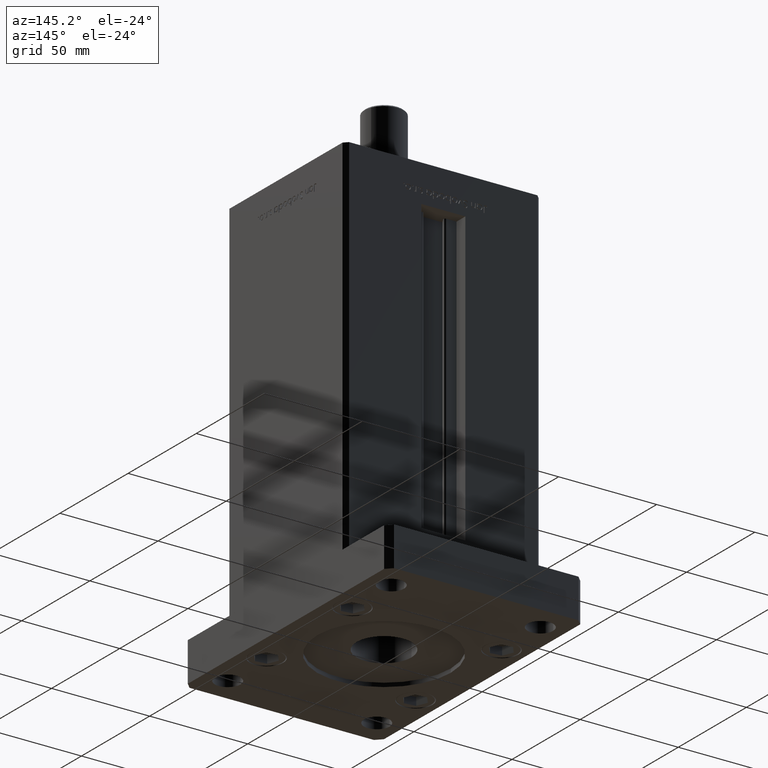
[diagram: clean part render]
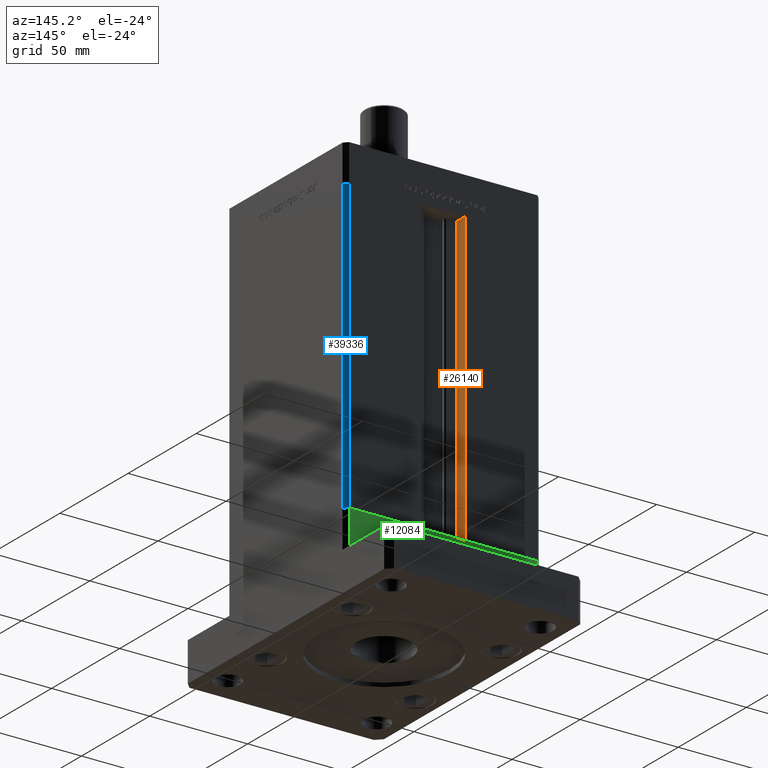
[diagram: same view with three faces highlighted in distinct colors, each labeled with its STEP entity id]
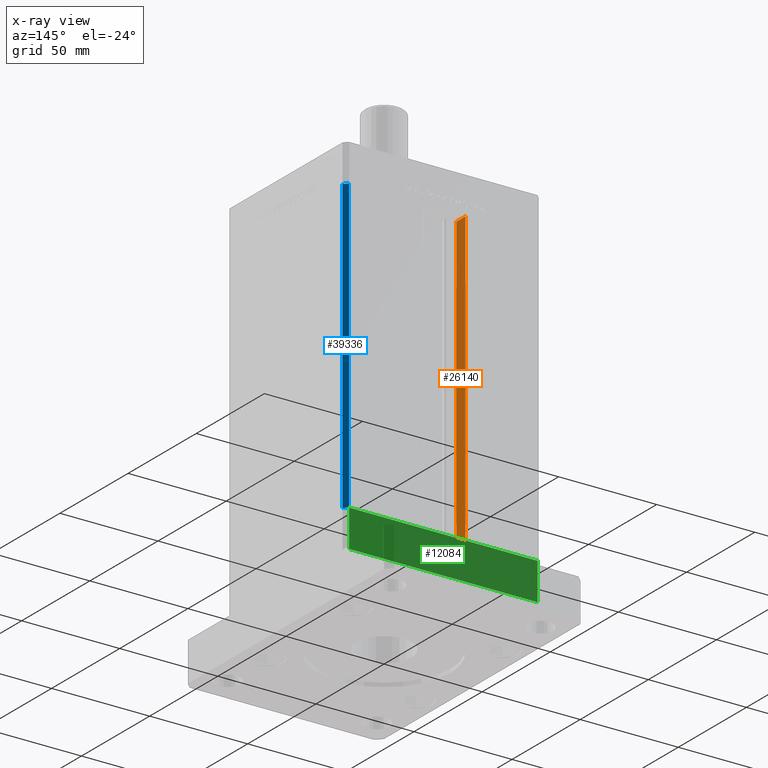
[diagram: x-ray of the same camera — body ghosted, the three highlighted faces saturated]
A machine part, auxiliary view with three faces highlighted in distinct colors.
The next image is the same camera in x-ray (body ghosted, the three faces saturated) — at least one of them is partly hidden behind the body in this view.
Their STEP definitions:

[orange] entity #26140 — the highlighted planar face has unit normal (-1, 0, 0).
#327 = VECTOR ( 'NONE', #2615, 1000.000000000000000 ) ;
#1137 = ORIENTED_EDGE ( 'NONE', *, *, #5017, .T. ) ;
#1536 = CARTESIAN_POINT ( 'NONE',  ( -11.24999999999999822, 36.99999999999999289, 0.000000000000000000 ) ) ;
#2615 = DIRECTION ( 'NONE',  ( -0.000000000000000000, -0.000000000000000000, 1.000000000000000000 ) ) ;
#3536 = CARTESIAN_POINT ( 'NONE',  ( -11.24999999999999822, 36.99999999999999289, 0.000000000000000000 ) ) ;
#3848 = LINE ( 'NONE', #15914, #36250 ) ;
#3935 = FACE_OUTER_BOUND ( 'NONE', #26878, .T. ) ;
#4352 = LINE ( 'NONE', #3536, #20159 ) ;
#5017 = EDGE_CURVE ( 'NONE', #18549, #41354, #15527, .T. ) ;
#5886 = AXIS2_PLACEMENT_3D ( 'NONE', #45556, #32431, #36270 ) ;
#6754 = CARTESIAN_POINT ( 'NONE',  ( -11.24999999999999822, 43.50000000000000000, 0.000000000000000000 ) ) ;
#10848 = CARTESIAN_POINT ( 'NONE',  ( -11.24999999999999822, 36.99999999999999289, 0.000000000000000000 ) ) ;
#11566 = CARTESIAN_POINT ( 'NONE',  ( -11.24999999999999822, 36.99999999999999289, 148.5000000000000000 ) ) ;
#15527 = LINE ( 'NONE', #6754, #27196 ) ;
#15914 = CARTESIAN_POINT ( 'NONE',  ( -11.24999999999999822, 0.000000000000000000, 148.5000000000000000 ) ) ;
#18549 = VERTEX_POINT ( 'NONE', #47784 ) ;
#20159 = VECTOR ( 'NONE', #46246, 1000.000000000000000 ) ;
#20383 = VERTEX_POINT ( 'NONE', #1536 ) ;
#26140 = ADVANCED_FACE ( 'NONE', ( #3935 ), #35996, .F. ) ;
#26878 = EDGE_LOOP ( 'NONE', ( #46925, #29587, #1137, #46864 ) ) ;
#27196 = VECTOR ( 'NONE', #32222, 1000.000000000000000 ) ;
#29587 = ORIENTED_EDGE ( 'NONE', *, *, #38667, .F. ) ;
#32222 = DIRECTION ( 'NONE',  ( -0.000000000000000000, -0.000000000000000000, 1.000000000000000000 ) ) ;
#32431 = DIRECTION ( 'NONE',  ( -1.000000000000000000, 0.000000000000000000, 0.000000000000000000 ) ) ;
#35996 = PLANE ( 'NONE',  #5886 ) ;
#36250 = VECTOR ( 'NONE', #37250, 1000.000000000000000 ) ;
#36270 = DIRECTION ( 'NONE',  ( 0.000000000000000000, 0.000000000000000000, 1.000000000000000000 ) ) ;
#37250 = DIRECTION ( 'NONE',  ( 0.000000000000000000, 1.000000000000000000, 0.000000000000000000 ) ) ;
#38345 = VERTEX_POINT ( 'NONE', #11566 ) ;
#38667 = EDGE_CURVE ( 'NONE', #18549, #20383, #4352, .T. ) ;
#39870 = LINE ( 'NONE', #10848, #327 ) ;
#40781 = CARTESIAN_POINT ( 'NONE',  ( -11.24999999999999822, 43.50000000000000000, 148.5000000000000000 ) ) ;
#41354 = VERTEX_POINT ( 'NONE', #40781 ) ;
#45556 = CARTESIAN_POINT ( 'NONE',  ( -11.24999999999999822, 36.99999999999999289, 0.000000000000000000 ) ) ;
#46246 = DIRECTION ( 'NONE',  ( -0.000000000000000000, -1.000000000000000000, -0.000000000000000000 ) ) ;
#46864 = ORIENTED_EDGE ( 'NONE', *, *, #53764, .F. ) ;
#46925 = ORIENTED_EDGE ( 'NONE', *, *, #50892, .F. ) ;
#47784 = CARTESIAN_POINT ( 'NONE',  ( -11.24999999999999822, 43.50000000000000000, 0.000000000000000000 ) ) ;
#50892 = EDGE_CURVE ( 'NONE', #20383, #38345, #39870, .T. ) ;
#53764 = EDGE_CURVE ( 'NONE', #38345, #41354, #3848, .T. ) ;

[blue] entity #39336 — the highlighted planar face has unit normal (0.7071, 0.7071, 0).
#155 = EDGE_LOOP ( 'NONE', ( #51829, #4047, #34562, #38665 ) ) ;
#2327 = VECTOR ( 'NONE', #23181, 1000.000000000000000 ) ;
#3262 = LINE ( 'NONE', #19984, #29104 ) ;
#4047 = ORIENTED_EDGE ( 'NONE', *, *, #9800, .F. ) ;
#5144 = CARTESIAN_POINT ( 'NONE',  ( 48.00000000000000711, 43.50000000000000000, 148.5000000000000000 ) ) ;
#7549 = VERTEX_POINT ( 'NONE', #43750 ) ;
#7749 = CARTESIAN_POINT ( 'NONE',  ( 48.00000000000000711, 43.50000000000000000, 0.000000000000000000 ) ) ;
#9800 = EDGE_CURVE ( 'NONE', #7549, #33470, #3262, .T. ) ;
#10104 = VECTOR ( 'NONE', #38587, 1000.000000000000000 ) ;
#10846 = CARTESIAN_POINT ( 'NONE',  ( 48.00000000000000711, 43.50000000000000000, 0.000000000000000000 ) ) ;
#14920 = VECTOR ( 'NONE', #51622, 1000.000000000000000 ) ;
#17833 = EDGE_CURVE ( 'NONE', #40479, #46603, #22348, .T. ) ;
#19984 = CARTESIAN_POINT ( 'NONE',  ( 48.00000000000000711, 43.50000000000000000, 148.5000000000000000 ) ) ;
#22165 = LINE ( 'NONE', #22689, #10104 ) ;
#22348 = LINE ( 'NONE', #39030, #14920 ) ;
#22689 = CARTESIAN_POINT ( 'NONE',  ( 48.00000000000000711, 43.50000000000000000, 148.5000000000000000 ) ) ;
#23181 = DIRECTION ( 'NONE',  ( 0.7071067811865487940, -0.7071067811865463515, 0.000000000000000000 ) ) ;
#23959 = EDGE_CURVE ( 'NONE', #33470, #46603, #31382, .T. ) ;
#25152 = FACE_OUTER_BOUND ( 'NONE', #155, .T. ) ;
#26763 = DIRECTION ( 'NONE',  ( 0.7071067811865463515, 0.7071067811865487940, -0.000000000000000000 ) ) ;
#29104 = VECTOR ( 'NONE', #32579, 1000.000000000000000 ) ;
#29607 = EDGE_CURVE ( 'NONE', #7549, #40479, #22165, .T. ) ;
#30085 = DIRECTION ( 'NONE',  ( -0.7071067811865487940, 0.7071067811865463515, 0.000000000000000000 ) ) ;
#31382 = LINE ( 'NONE', #10846, #2327 ) ;
#32579 = DIRECTION ( 'NONE',  ( -0.000000000000000000, -0.000000000000000000, -1.000000000000000000 ) ) ;
#33470 = VERTEX_POINT ( 'NONE', #7749 ) ;
#34562 = ORIENTED_EDGE ( 'NONE', *, *, #29607, .T. ) ;
#34920 = AXIS2_PLACEMENT_3D ( 'NONE', #5144, #26763, #30085 ) ;
#35453 = CARTESIAN_POINT ( 'NONE',  ( 50.00000000000001421, 41.49999999999999289, 148.5000000000000000 ) ) ;
#38587 = DIRECTION ( 'NONE',  ( 0.7071067811865487940, -0.7071067811865463515, 0.000000000000000000 ) ) ;
#38665 = ORIENTED_EDGE ( 'NONE', *, *, #17833, .T. ) ;
#39030 = CARTESIAN_POINT ( 'NONE',  ( 50.00000000000001421, 41.49999999999999289, 148.5000000000000000 ) ) ;
#39336 = ADVANCED_FACE ( 'NONE', ( #25152 ), #47033, .T. ) ;
#40047 = CARTESIAN_POINT ( 'NONE',  ( 50.00000000000001421, 41.49999999999999289, 0.000000000000000000 ) ) ;
#40479 = VERTEX_POINT ( 'NONE', #35453 ) ;
#43750 = CARTESIAN_POINT ( 'NONE',  ( 48.00000000000000711, 43.50000000000000000, 148.5000000000000000 ) ) ;
#46603 = VERTEX_POINT ( 'NONE', #40047 ) ;
#47033 = PLANE ( 'NONE',  #34920 ) ;
#51622 = DIRECTION ( 'NONE',  ( -0.000000000000000000, -0.000000000000000000, -1.000000000000000000 ) ) ;
#51829 = ORIENTED_EDGE ( 'NONE', *, *, #23959, .F. ) ;

[green] entity #12084 — the highlighted planar face has unit normal (0, 1, 0).
#82 = CARTESIAN_POINT ( 'NONE',  ( 47.99999999999990763, 43.50000000000000000, 0.000000000000000000 ) ) ;
#2408 = ORIENTED_EDGE ( 'NONE', *, *, #38134, .T. ) ;
#6079 = EDGE_CURVE ( 'NONE', #16168, #8763, #37613, .T. ) ;
#8717 = LINE ( 'NONE', #26242, #12304 ) ;
#8763 = VERTEX_POINT ( 'NONE', #12085 ) ;
#12084 = ADVANCED_FACE ( 'NONE', ( #32995 ), #45861, .T. ) ;
#12085 = CARTESIAN_POINT ( 'NONE',  ( -48.00000000000000711, 43.49999999999996447, -19.00000000000000000 ) ) ;
#12196 = DIRECTION ( 'NONE',  ( -1.000000000000000000, -3.614007241618350743E-16, 0.000000000000000000 ) ) ;
#12304 = VECTOR ( 'NONE', #37756, 1000.000000000000000 ) ;
#12422 = LINE ( 'NONE', #82, #22636 ) ;
#16168 = VERTEX_POINT ( 'NONE', #37886 ) ;
#16804 = DIRECTION ( 'NONE',  ( -1.000000000000000000, -3.614007241618350743E-16, 0.000000000000000000 ) ) ;
#17056 = VERTEX_POINT ( 'NONE', #52276 ) ;
#17265 = EDGE_CURVE ( 'NONE', #16168, #24858, #8717, .T. ) ;
#17366 = CARTESIAN_POINT ( 'NONE',  ( -48.00000000000000711, 43.49999999999996447, -19.00000000000000000 ) ) ;
#19203 = ORIENTED_EDGE ( 'NONE', *, *, #17265, .F. ) ;
#20988 = ORIENTED_EDGE ( 'NONE', *, *, #33543, .F. ) ;
#21497 = LINE ( 'NONE', #17366, #27165 ) ;
#22636 = VECTOR ( 'NONE', #16804, 1000.000000000000000 ) ;
#24858 = VERTEX_POINT ( 'NONE', #36311 ) ;
#26242 = CARTESIAN_POINT ( 'NONE',  ( 47.99999999999990763, 43.50000000000000000, -19.00000000000000000 ) ) ;
#27165 = VECTOR ( 'NONE', #38170, 1000.000000000000000 ) ;
#32995 = FACE_OUTER_BOUND ( 'NONE', #45499, .T. ) ;
#33543 = EDGE_CURVE ( 'NONE', #24858, #17056, #12422, .T. ) ;
#36311 = CARTESIAN_POINT ( 'NONE',  ( 47.99999999999990763, 43.50000000000000000, 0.000000000000000000 ) ) ;
#37613 = LINE ( 'NONE', #53758, #52579 ) ;
#37756 = DIRECTION ( 'NONE',  ( 0.000000000000000000, 0.000000000000000000, 1.000000000000000000 ) ) ;
#37886 = CARTESIAN_POINT ( 'NONE',  ( 47.99999999999990763, 43.50000000000000000, -19.00000000000000000 ) ) ;
#38134 = EDGE_CURVE ( 'NONE', #8763, #17056, #21497, .T. ) ;
#38170 = DIRECTION ( 'NONE',  ( 0.000000000000000000, 0.000000000000000000, 1.000000000000000000 ) ) ;
#38194 = CARTESIAN_POINT ( 'NONE',  ( 47.99999999999990763, 43.50000000000000000, -19.00000000000000000 ) ) ;
#45485 = ORIENTED_EDGE ( 'NONE', *, *, #6079, .T. ) ;
#45499 = EDGE_LOOP ( 'NONE', ( #20988, #19203, #45485, #2408 ) ) ;
#45861 = PLANE ( 'NONE',  #54101 ) ;
#49685 = DIRECTION ( 'NONE',  ( -3.614007241618350743E-16, 1.000000000000000000, 0.000000000000000000 ) ) ;
#52276 = CARTESIAN_POINT ( 'NONE',  ( -48.00000000000000711, 43.49999999999996447, 0.000000000000000000 ) ) ;
#52579 = VECTOR ( 'NONE', #54019, 1000.000000000000000 ) ;
#53758 = CARTESIAN_POINT ( 'NONE',  ( 47.99999999999990763, 43.50000000000000000, -19.00000000000000000 ) ) ;
#54019 = DIRECTION ( 'NONE',  ( -1.000000000000000000, -3.614007241618350743E-16, 0.000000000000000000 ) ) ;
#54101 = AXIS2_PLACEMENT_3D ( 'NONE', #38194, #49685, #12196 ) ;